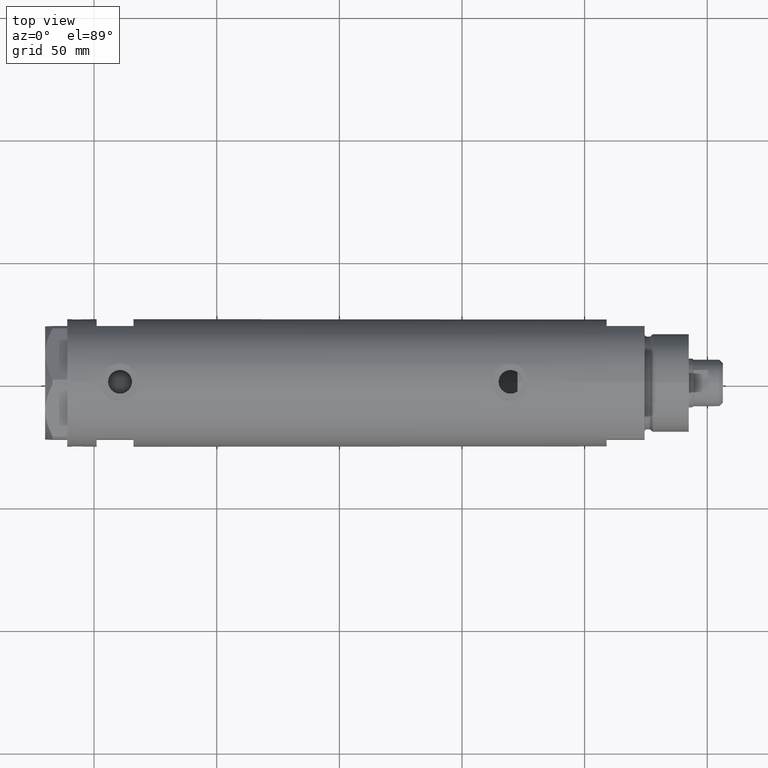
[diagram: clean part render]
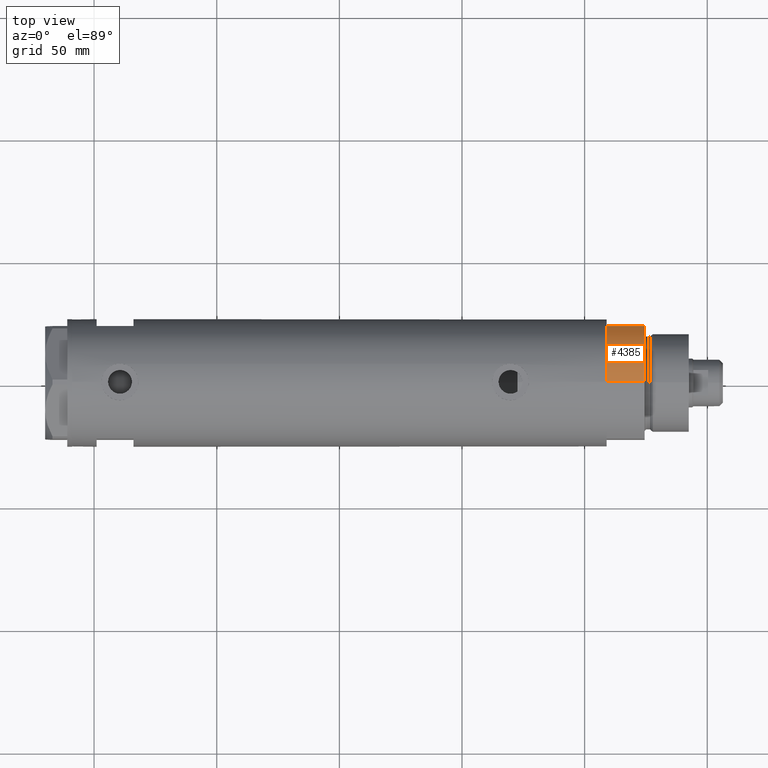
[diagram: same view with one face highlighted and labeled with its STEP entity id]
A machine part, top view. The second image highlights one B-rep face of the part: STEP entity #4385.
In plain terms, the highlighted cylindrical surface (partial cylindrical patch) has radius 26 mm, axis along (-1, -0, 0).
Its self-contained STEP definition (entity closure, byte-faithful):
#1 = ORIENTED_EDGE ( 'NONE', *, *, #3027, .F. ) ;
#79 = DIRECTION ( 'NONE',  ( -1.000000000000000000, 0.000000000000000000, 0.000000000000000000 ) ) ;
#210 = CARTESIAN_POINT ( 'NONE',  ( -12.12435565298215145, 23.00000000000000355, 0.000000000000000000 ) ) ;
#312 = VERTEX_POINT ( 'NONE', #2925 ) ;
#557 = DIRECTION ( 'NONE',  ( -0.000000000000000000, -0.000000000000000000, -1.000000000000000000 ) ) ;
#746 = CARTESIAN_POINT ( 'NONE',  ( -26.00000000000000355, 0.000000000000000000, 15.50000000000000000 ) ) ;
#846 = ORIENTED_EDGE ( 'NONE', *, *, #1053, .F. ) ;
#1037 = CARTESIAN_POINT ( 'NONE',  ( 0.000000000000000000, 0.000000000000000000, 15.50000000000000000 ) ) ;
#1043 = AXIS2_PLACEMENT_3D ( 'NONE', #1798, #2279, #2219 ) ;
#1053 = EDGE_CURVE ( 'NONE', #6268, #1194, #1349, .T. ) ;
#1149 = CARTESIAN_POINT ( 'NONE',  ( -12.12435565298214613, 23.00000000000000355, 15.50000000000000000 ) ) ;
#1194 = VERTEX_POINT ( 'NONE', #5869 ) ;
#1250 = AXIS2_PLACEMENT_3D ( 'NONE', #1822, #3773, #2393 ) ;
#1349 = CIRCLE ( 'NONE', #1250, 26.00000000000000355 ) ;
#1479 = EDGE_CURVE ( 'NONE', #312, #6024, #3078, .T. ) ;
#1798 = CARTESIAN_POINT ( 'NONE',  ( 0.000000000000000000, 0.000000000000000000, 0.000000000000000000 ) ) ;
#1822 = CARTESIAN_POINT ( 'NONE',  ( 0.000000000000000000, 0.000000000000000000, 15.50000000000000000 ) ) ;
#2219 = DIRECTION ( 'NONE',  ( 1.000000000000000000, 0.000000000000000000, 0.000000000000000000 ) ) ;
#2279 = DIRECTION ( 'NONE',  ( 0.000000000000000000, 0.000000000000000000, 1.000000000000000000 ) ) ;
#2393 = DIRECTION ( 'NONE',  ( 1.000000000000000000, 0.000000000000000000, 0.000000000000000000 ) ) ;
#2620 = AXIS2_PLACEMENT_3D ( 'NONE', #1037, #557, #79 ) ;
#2683 = DIRECTION ( 'NONE',  ( -0.000000000000000000, -0.000000000000000000, -1.000000000000000000 ) ) ;
#2903 = VECTOR ( 'NONE', #5039, 1000.000000000000000 ) ;
#2925 = CARTESIAN_POINT ( 'NONE',  ( -12.12435565298215145, 23.00000000000000355, 0.000000000000000000 ) ) ;
#2931 = EDGE_LOOP ( 'NONE', ( #3749, #846, #1, #5348 ) ) ;
#3027 = EDGE_CURVE ( 'NONE', #312, #6268, #4590, .T. ) ;
#3078 = CIRCLE ( 'NONE', #1043, 26.00000000000000355 ) ;
#3396 = CYLINDRICAL_SURFACE ( 'NONE', #2620, 26.00000000000000355 ) ;
#3663 = CARTESIAN_POINT ( 'NONE',  ( -26.00000000000000355, 0.000000000000000000, 0.000000000000000000 ) ) ;
#3749 = ORIENTED_EDGE ( 'NONE', *, *, #5238, .F. ) ;
#3773 = DIRECTION ( 'NONE',  ( 0.000000000000000000, 0.000000000000000000, 1.000000000000000000 ) ) ;
#4385 = ADVANCED_FACE ( 'NONE', ( #5383 ), #3396, .T. ) ;
#4590 = LINE ( 'NONE', #210, #2903 ) ;
#5039 = DIRECTION ( 'NONE',  ( -0.000000000000000000, -0.000000000000000000, 1.000000000000000000 ) ) ;
#5238 = EDGE_CURVE ( 'NONE', #1194, #6024, #6212, .T. ) ;
#5348 = ORIENTED_EDGE ( 'NONE', *, *, #1479, .T. ) ;
#5383 = FACE_OUTER_BOUND ( 'NONE', #2931, .T. ) ;
#5694 = VECTOR ( 'NONE', #2683, 1000.000000000000000 ) ;
#5869 = CARTESIAN_POINT ( 'NONE',  ( -26.00000000000000355, 0.000000000000000000, 15.50000000000000000 ) ) ;
#6024 = VERTEX_POINT ( 'NONE', #3663 ) ;
#6212 = LINE ( 'NONE', #746, #5694 ) ;
#6268 = VERTEX_POINT ( 'NONE', #1149 ) ;